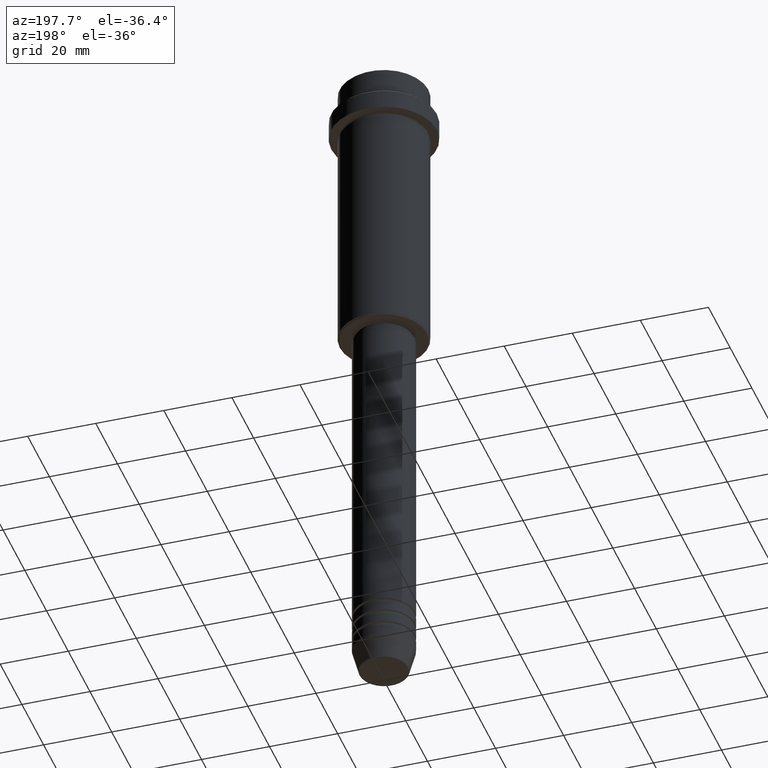
[diagram: clean part render]
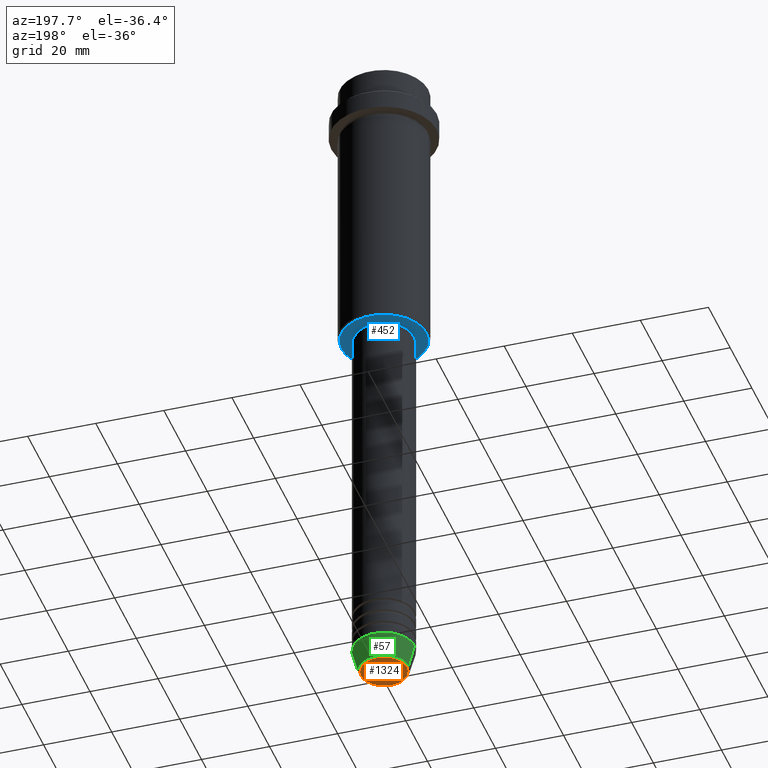
[diagram: same view with three faces highlighted in distinct colors, each labeled with its STEP entity id]
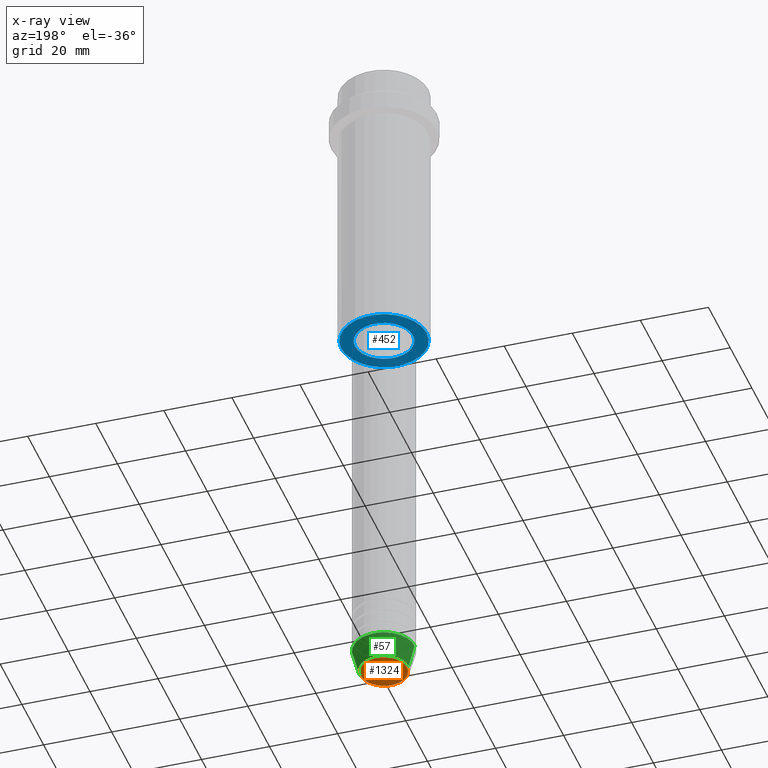
[diagram: x-ray of the same camera — body ghosted, the three highlighted faces saturated]
A machine part, auxiliary view with three faces highlighted in distinct colors.
The next image is the same camera in x-ray (body ghosted, the three faces saturated) — at least one of them is partly hidden behind the body in this view.
Their STEP definitions:

[orange] entity #1324 — the highlighted planar face has unit normal (0, -0, 1).
#55 = CIRCLE ( 'NONE', #393, 6.740692158992663607 ) ;
#73 = DIRECTION ( 'NONE',  ( 1.000000000000000000, 0.000000000000000000, 0.000000000000000000 ) ) ;
#79 = ORIENTED_EDGE ( 'NONE', *, *, #1385, .T. ) ;
#176 = EDGE_CURVE ( 'NONE', #755, #893, #55, .T. ) ;
#180 = DIRECTION ( 'NONE',  ( 0.000000000000000000, -0.000000000000000000, 1.000000000000000000 ) ) ;
#181 = ORIENTED_EDGE ( 'NONE', *, *, #176, .T. ) ;
#245 = DIRECTION ( 'NONE',  ( 1.000000000000000000, 0.000000000000000000, 0.000000000000000000 ) ) ;
#362 = DIRECTION ( 'NONE',  ( 0.000000000000000000, 0.000000000000000000, -1.000000000000000000 ) ) ;
#393 = AXIS2_PLACEMENT_3D ( 'NONE', #890, #362, #245 ) ;
#446 = CARTESIAN_POINT ( 'NONE',  ( -6.740692158992663607, 8.550696569392697514E-16, -200.0000000000000000 ) ) ;
#582 = AXIS2_PLACEMENT_3D ( 'NONE', #1168, #180, #73 ) ;
#596 = DIRECTION ( 'NONE',  ( 1.000000000000000000, 0.000000000000000000, 0.000000000000000000 ) ) ;
#608 = CARTESIAN_POINT ( 'NONE',  ( 0.000000000000000000, 0.000000000000000000, -200.0000000000000000 ) ) ;
#647 = FACE_OUTER_BOUND ( 'NONE', #1412, .T. ) ;
#697 = CARTESIAN_POINT ( 'NONE',  ( 6.740692158992663607, 0.000000000000000000, -200.0000000000000000 ) ) ;
#755 = VERTEX_POINT ( 'NONE', #697 ) ;
#776 = AXIS2_PLACEMENT_3D ( 'NONE', #608, #1229, #596 ) ;
#890 = CARTESIAN_POINT ( 'NONE',  ( 0.000000000000000000, 0.000000000000000000, -200.0000000000000000 ) ) ;
#893 = VERTEX_POINT ( 'NONE', #446 ) ;
#1168 = CARTESIAN_POINT ( 'NONE',  ( 0.000000000000000000, 0.000000000000000000, -200.0000000000000000 ) ) ;
#1229 = DIRECTION ( 'NONE',  ( 0.000000000000000000, 0.000000000000000000, -1.000000000000000000 ) ) ;
#1292 = CIRCLE ( 'NONE', #776, 6.740692158992663607 ) ;
#1302 = PLANE ( 'NONE',  #582 ) ;
#1324 = ADVANCED_FACE ( 'NONE', ( #647 ), #1302, .F. ) ;
#1385 = EDGE_CURVE ( 'NONE', #893, #755, #1292, .T. ) ;
#1412 = EDGE_LOOP ( 'NONE', ( #181, #79 ) ) ;

[blue] entity #452 — the highlighted planar face has unit normal (0, 0, -1).
#8 = CIRCLE ( 'NONE', #996, 8.499999999999994671 ) ;
#14 = DIRECTION ( 'NONE',  ( 0.000000000000000000, 0.000000000000000000, -1.000000000000000000 ) ) ;
#16 = CARTESIAN_POINT ( 'NONE',  ( -8.499999999999994671, 1.040949779275249745E-15, -84.99999999999998579 ) ) ;
#51 = CARTESIAN_POINT ( 'NONE',  ( -12.50000000000006750, 1.561424668912879450E-15, -84.99999999999998579 ) ) ;
#95 = CARTESIAN_POINT ( 'NONE',  ( 0.000000000000000000, 0.000000000000000000, -84.99999999999998579 ) ) ;
#110 = VERTEX_POINT ( 'NONE', #1010 ) ;
#142 = AXIS2_PLACEMENT_3D ( 'NONE', #170, #1270, #151 ) ;
#151 = DIRECTION ( 'NONE',  ( -1.000000000000000000, 0.000000000000000000, 0.000000000000000000 ) ) ;
#170 = CARTESIAN_POINT ( 'NONE',  ( 0.000000000000000000, 0.000000000000000000, -84.99999999999998579 ) ) ;
#175 = EDGE_LOOP ( 'NONE', ( #1349, #1031 ) ) ;
#192 = AXIS2_PLACEMENT_3D ( 'NONE', #238, #1009, #895 ) ;
#202 = VERTEX_POINT ( 'NONE', #16 ) ;
#238 = CARTESIAN_POINT ( 'NONE',  ( 0.000000000000000000, 13.00000000000000000, -84.99999999999998579 ) ) ;
#277 = EDGE_CURVE ( 'NONE', #202, #723, #1312, .T. ) ;
#310 = AXIS2_PLACEMENT_3D ( 'NONE', #574, #14, #1339 ) ;
#330 = AXIS2_PLACEMENT_3D ( 'NONE', #977, #988, #1411 ) ;
#376 = EDGE_CURVE ( 'NONE', #723, #202, #8, .T. ) ;
#434 = ORIENTED_EDGE ( 'NONE', *, *, #277, .T. ) ;
#452 = ADVANCED_FACE ( 'NONE', ( #889, #1124 ), #1217, .T. ) ;
#550 = EDGE_CURVE ( 'NONE', #1207, #110, #881, .T. ) ;
#557 = CARTESIAN_POINT ( 'NONE',  ( 8.499999999999994671, 0.000000000000000000, -84.99999999999998579 ) ) ;
#574 = CARTESIAN_POINT ( 'NONE',  ( 0.000000000000000000, 0.000000000000000000, -84.99999999999998579 ) ) ;
#622 = ORIENTED_EDGE ( 'NONE', *, *, #376, .T. ) ;
#723 = VERTEX_POINT ( 'NONE', #557 ) ;
#780 = EDGE_CURVE ( 'NONE', #110, #1207, #1129, .T. ) ;
#881 = CIRCLE ( 'NONE', #310, 12.50000000000006750 ) ;
#889 = FACE_OUTER_BOUND ( 'NONE', #175, .T. ) ;
#895 = DIRECTION ( 'NONE',  ( -1.000000000000000000, 0.000000000000000000, -0.000000000000000000 ) ) ;
#977 = CARTESIAN_POINT ( 'NONE',  ( 0.000000000000000000, 0.000000000000000000, -84.99999999999998579 ) ) ;
#988 = DIRECTION ( 'NONE',  ( -0.000000000000000000, -0.000000000000000000, 1.000000000000000000 ) ) ;
#996 = AXIS2_PLACEMENT_3D ( 'NONE', #95, #1295, #1316 ) ;
#1009 = DIRECTION ( 'NONE',  ( 0.000000000000000000, 0.000000000000000000, -1.000000000000000000 ) ) ;
#1010 = CARTESIAN_POINT ( 'NONE',  ( 12.50000000000006750, 0.000000000000000000, -84.99999999999998579 ) ) ;
#1031 = ORIENTED_EDGE ( 'NONE', *, *, #550, .T. ) ;
#1124 = FACE_BOUND ( 'NONE', #1165, .T. ) ;
#1129 = CIRCLE ( 'NONE', #142, 12.50000000000006750 ) ;
#1165 = EDGE_LOOP ( 'NONE', ( #622, #434 ) ) ;
#1207 = VERTEX_POINT ( 'NONE', #51 ) ;
#1217 = PLANE ( 'NONE',  #192 ) ;
#1270 = DIRECTION ( 'NONE',  ( 0.000000000000000000, 0.000000000000000000, -1.000000000000000000 ) ) ;
#1295 = DIRECTION ( 'NONE',  ( -0.000000000000000000, -0.000000000000000000, 1.000000000000000000 ) ) ;
#1312 = CIRCLE ( 'NONE', #330, 8.499999999999994671 ) ;
#1316 = DIRECTION ( 'NONE',  ( 1.000000000000000000, 0.000000000000000000, 0.000000000000000000 ) ) ;
#1339 = DIRECTION ( 'NONE',  ( -1.000000000000000000, 0.000000000000000000, 0.000000000000000000 ) ) ;
#1349 = ORIENTED_EDGE ( 'NONE', *, *, #780, .T. ) ;
#1411 = DIRECTION ( 'NONE',  ( 1.000000000000000000, 0.000000000000000000, 0.000000000000000000 ) ) ;

[green] entity #57 — the highlighted conical surface has half-angle 15 deg.
#42 = CARTESIAN_POINT ( 'NONE',  ( 0.000000000000000000, 0.000000000000000000, -199.6294095225512706 ) ) ;
#57 = ADVANCED_FACE ( 'NONE', ( #767 ), #1157, .T. ) ;
#114 = CARTESIAN_POINT ( 'NONE',  ( 0.000000000000000000, 0.000000000000000000, -193.0000000000000000 ) ) ;
#128 = DIRECTION ( 'NONE',  ( -0.000000000000000000, -0.000000000000000000, 1.000000000000000000 ) ) ;
#137 = CARTESIAN_POINT ( 'NONE',  ( -7.223655072137194821, 9.934123627281767082E-16, -199.6294095225512706 ) ) ;
#138 = EDGE_CURVE ( 'NONE', #1048, #449, #1024, .T. ) ;
#190 = ORIENTED_EDGE ( 'NONE', *, *, #229, .T. ) ;
#229 = EDGE_CURVE ( 'NONE', #731, #449, #576, .T. ) ;
#275 = LINE ( 'NONE', #366, #325 ) ;
#325 = VECTOR ( 'NONE', #1161, 1000.000000000000114 ) ;
#366 = CARTESIAN_POINT ( 'NONE',  ( 9.000000000000000000, 0.000000000000000000, -193.0000000000000000 ) ) ;
#391 = AXIS2_PLACEMENT_3D ( 'NONE', #644, #1405, #964 ) ;
#402 = ORIENTED_EDGE ( 'NONE', *, *, #1216, .T. ) ;
#414 = VECTOR ( 'NONE', #1138, 1000.000000000000114 ) ;
#449 = VERTEX_POINT ( 'NONE', #1235 ) ;
#480 = DIRECTION ( 'NONE',  ( -0.000000000000000000, -0.000000000000000000, 1.000000000000000000 ) ) ;
#556 = CIRCLE ( 'NONE', #701, 7.223655072137194821 ) ;
#576 = LINE ( 'NONE', #709, #414 ) ;
#644 = CARTESIAN_POINT ( 'NONE',  ( 0.000000000000000000, 0.000000000000000000, -193.0000000000000000 ) ) ;
#701 = AXIS2_PLACEMENT_3D ( 'NONE', #42, #480, #918 ) ;
#709 = CARTESIAN_POINT ( 'NONE',  ( -9.000000000000000000, 1.102182119232617714E-15, -193.0000000000000000 ) ) ;
#731 = VERTEX_POINT ( 'NONE', #137 ) ;
#761 = CARTESIAN_POINT ( 'NONE',  ( 9.000000000000000000, 0.000000000000000000, -193.0000000000000000 ) ) ;
#767 = FACE_OUTER_BOUND ( 'NONE', #1012, .T. ) ;
#769 = ORIENTED_EDGE ( 'NONE', *, *, #789, .F. ) ;
#789 = EDGE_CURVE ( 'NONE', #933, #1048, #275, .T. ) ;
#805 = DIRECTION ( 'NONE',  ( 1.000000000000000000, 0.000000000000000000, 0.000000000000000000 ) ) ;
#857 = ORIENTED_EDGE ( 'NONE', *, *, #138, .F. ) ;
#918 = DIRECTION ( 'NONE',  ( 1.000000000000000000, 0.000000000000000000, 0.000000000000000000 ) ) ;
#933 = VERTEX_POINT ( 'NONE', #1384 ) ;
#964 = DIRECTION ( 'NONE',  ( 1.000000000000000000, 0.000000000000000000, 0.000000000000000000 ) ) ;
#1012 = EDGE_LOOP ( 'NONE', ( #402, #190, #857, #769 ) ) ;
#1024 = CIRCLE ( 'NONE', #1274, 9.000000000000000000 ) ;
#1048 = VERTEX_POINT ( 'NONE', #761 ) ;
#1138 = DIRECTION ( 'NONE',  ( -0.2588190451025205174, 3.169619151431761243E-17, 0.9659258262890684232 ) ) ;
#1157 = CONICAL_SURFACE ( 'NONE', #391, 9.000000000000000000, 0.2617993877991491303 ) ;
#1161 = DIRECTION ( 'NONE',  ( 0.2588190451025205174, 0.000000000000000000, 0.9659258262890684232 ) ) ;
#1216 = EDGE_CURVE ( 'NONE', #933, #731, #556, .T. ) ;
#1235 = CARTESIAN_POINT ( 'NONE',  ( -9.000000000000000000, 1.102182119232617714E-15, -193.0000000000000000 ) ) ;
#1274 = AXIS2_PLACEMENT_3D ( 'NONE', #114, #128, #805 ) ;
#1384 = CARTESIAN_POINT ( 'NONE',  ( 7.223655072137194821, 0.000000000000000000, -199.6294095225512706 ) ) ;
#1405 = DIRECTION ( 'NONE',  ( -0.000000000000000000, -0.000000000000000000, 1.000000000000000000 ) ) ;